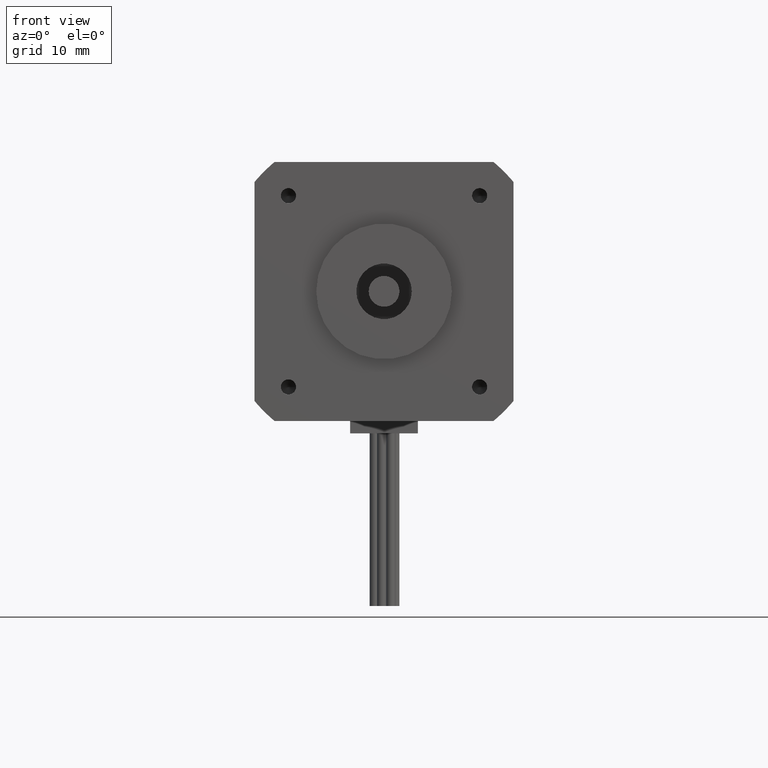
[diagram: clean part render]
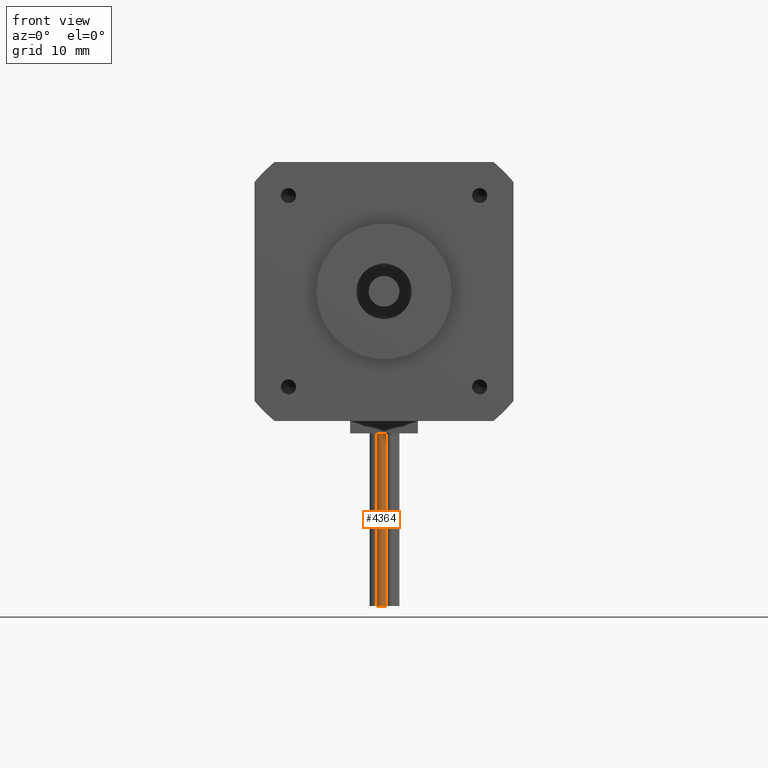
[diagram: same view with one face highlighted and labeled with its STEP entity id]
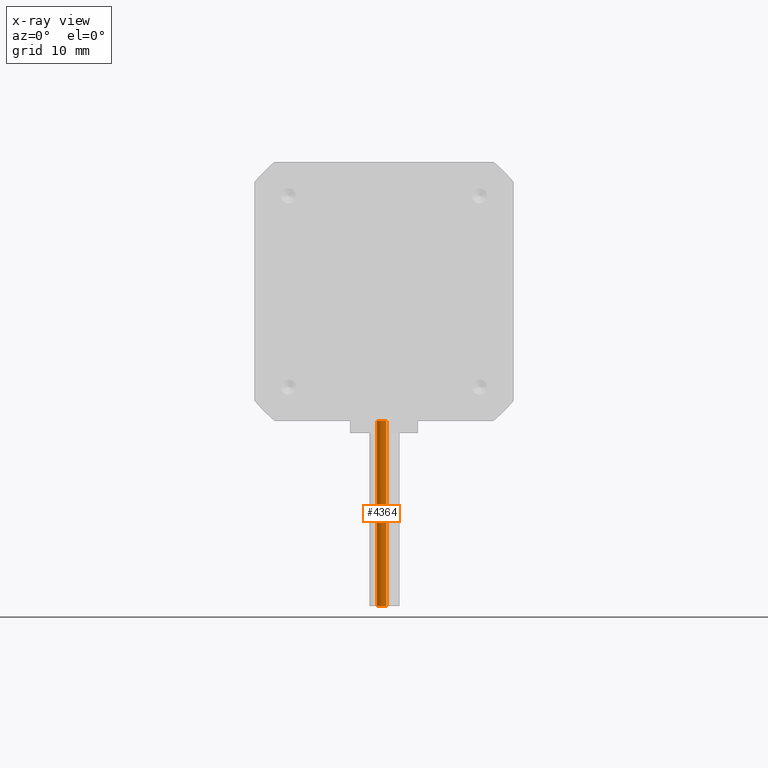
[diagram: x-ray of the same camera — body ghosted, the highlighted face saturated]
A machine part, front view. The second image highlights one B-rep face of the part: STEP entity #4364.
The next image is the same camera in x-ray: the body ghosted, the highlighted face saturated — about 0% of this face is hidden behind the body in this view.
In plain terms, the highlighted cylindrical surface (bore or boss wall) has radius 0.75 mm, axis along (-0, 0, 1).
Its self-contained STEP definition (entity closure, byte-faithful):
#852=FACE_BOUND('',#1439,.T.);
#1098=FACE_OUTER_BOUND('',#1438,.T.);
#1438=EDGE_LOOP('',(#3762));
#1439=EDGE_LOOP('',(#3763));
#1696=CIRCLE('',#4886,0.075);
#1697=CIRCLE('',#4887,0.075);
#2098=VERTEX_POINT('',#7551);
#2099=VERTEX_POINT('',#7553);
#2658=EDGE_CURVE('',#2098,#2098,#1696,.T.);
#2659=EDGE_CURVE('',#2099,#2099,#1697,.T.);
#3762=ORIENTED_EDGE('',*,*,#2658,.F.);
#3763=ORIENTED_EDGE('',*,*,#2659,.F.);
#3843=CYLINDRICAL_SURFACE('',#4885,0.075);
#4364=ADVANCED_FACE('',(#1098,#852),#3843,.T.);
#4885=AXIS2_PLACEMENT_3D('',#7550,#6109,#6110);
#4886=AXIS2_PLACEMENT_3D('',#7552,#6111,#6112);
#4887=AXIS2_PLACEMENT_3D('',#7554,#6113,#6114);
#6109=DIRECTION('center_axis',(-5.79298033908417E-48,1.24501532695106E-16,
1.));
#6110=DIRECTION('ref_axis',(-1.,-3.07286207100727E-32,-1.96721996307352E-48));
#6111=DIRECTION('center_axis',(-5.79298033908417E-48,1.24501532695106E-16,
1.));
#6112=DIRECTION('ref_axis',(-1.,-3.07286207100727E-32,-1.96721996307352E-48));
#6113=DIRECTION('center_axis',(5.79298033908417E-48,-1.24501532695106E-16,
-1.));
#6114=DIRECTION('ref_axis',(-1.,-3.07286207100727E-32,-1.96721996307352E-48));
#7550=CARTESIAN_POINT('Origin',(-0.454201116741332,2.42203112498784,-3.65219720772041));
#7551=CARTESIAN_POINT('',(-0.379201116741332,2.42203112498784,-0.652197207720413));
#7552=CARTESIAN_POINT('Origin',(-0.454201116741332,2.42203112498784,-0.652197207720413));
#7553=CARTESIAN_POINT('',(-0.379201116741332,2.42203112498784,-3.65219720772041));
#7554=CARTESIAN_POINT('Origin',(-0.454201116741332,2.42203112498784,-3.65219720772041));